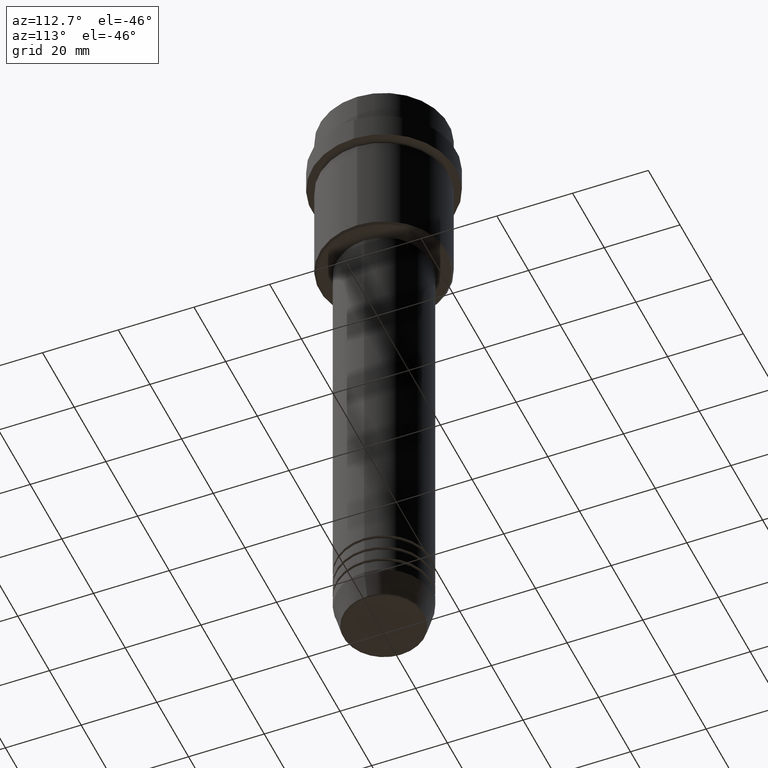
[diagram: clean part render]
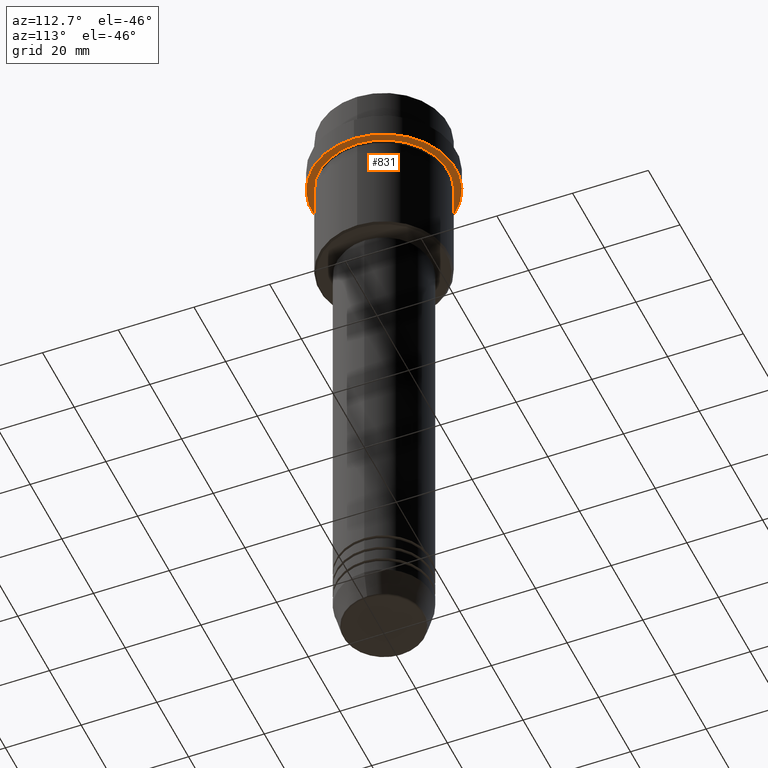
[diagram: same view with one face highlighted and labeled with its STEP entity id]
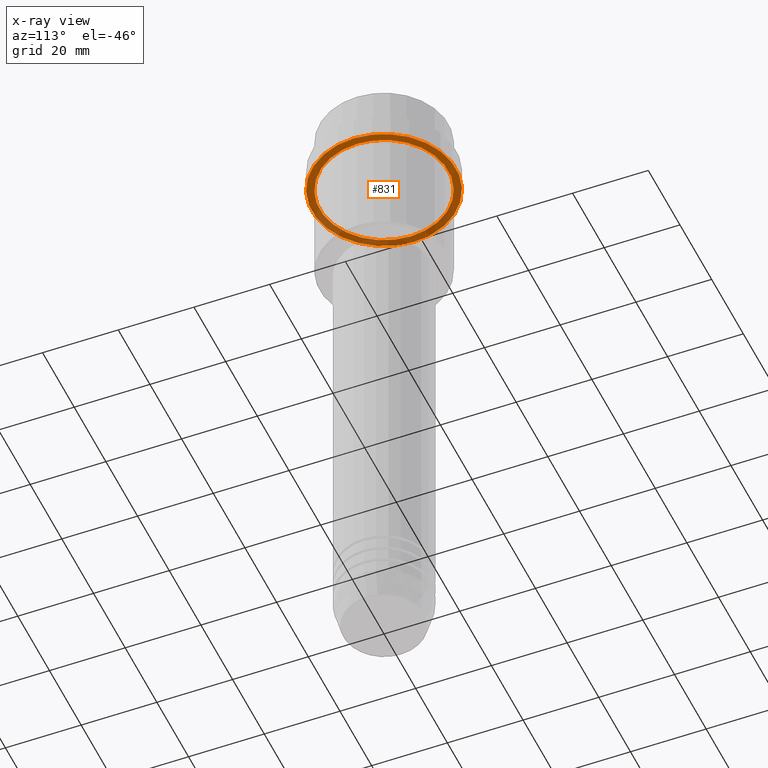
[diagram: x-ray of the same camera — body ghosted, the highlighted face saturated]
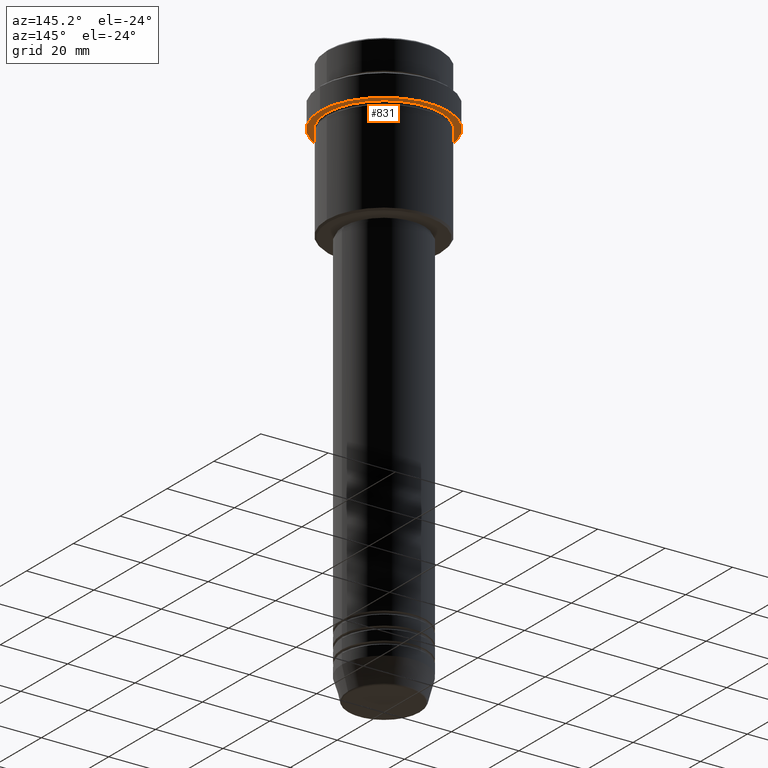
[diagram: same view with one face highlighted and labeled with its STEP entity id]
A machine part, auxiliary view. The second image highlights one B-rep face of the part: STEP entity #831.
The next image is the same camera in x-ray: the body ghosted, the highlighted face saturated — about 36% of this face is hidden behind the body in this view.
A second angle (auxiliary view) of the same face is appended — the face is thin or edge-on in the first view.
In plain terms, the highlighted planar face has unit normal (0, 0, -1).
Its self-contained STEP definition (entity closure, byte-faithful):
#17 = CARTESIAN_POINT ( 'NONE',  ( -16.99999999999997513, 0.000000000000000000, -17.00000000000000000 ) ) ;
#19 = EDGE_CURVE ( 'NONE', #40, #1066, #753, .T. ) ;
#26 = DIRECTION ( 'NONE',  ( -1.000000000000000000, 0.000000000000000000, -0.000000000000000000 ) ) ;
#40 = VERTEX_POINT ( 'NONE', #1054 ) ;
#43 = FACE_BOUND ( 'NONE', #114, .T. ) ;
#88 = AXIS2_PLACEMENT_3D ( 'NONE', #154, #1354, #375 ) ;
#114 = EDGE_LOOP ( 'NONE', ( #288, #647 ) ) ;
#120 = CARTESIAN_POINT ( 'NONE',  ( 0.000000000000000000, 18.99999999999997868, -17.00000000000000000 ) ) ;
#154 = CARTESIAN_POINT ( 'NONE',  ( 0.000000000000000000, 0.000000000000000000, -17.00000000000000000 ) ) ;
#211 = VERTEX_POINT ( 'NONE', #766 ) ;
#288 = ORIENTED_EDGE ( 'NONE', *, *, #1326, .T. ) ;
#324 = EDGE_CURVE ( 'NONE', #211, #1026, #1219, .T. ) ;
#356 = FACE_OUTER_BOUND ( 'NONE', #514, .T. ) ;
#357 = CARTESIAN_POINT ( 'NONE',  ( 0.000000000000000000, 0.000000000000000000, -17.00000000000000000 ) ) ;
#375 = DIRECTION ( 'NONE',  ( -1.000000000000000000, 0.000000000000000000, 0.000000000000000000 ) ) ;
#478 = AXIS2_PLACEMENT_3D ( 'NONE', #120, #561, #26 ) ;
#481 = PLANE ( 'NONE',  #478 ) ;
#514 = EDGE_LOOP ( 'NONE', ( #738, #650 ) ) ;
#561 = DIRECTION ( 'NONE',  ( 0.000000000000000000, 0.000000000000000000, -1.000000000000000000 ) ) ;
#647 = ORIENTED_EDGE ( 'NONE', *, *, #19, .T. ) ;
#650 = ORIENTED_EDGE ( 'NONE', *, *, #1405, .F. ) ;
#706 = CARTESIAN_POINT ( 'NONE',  ( 0.000000000000000000, 0.000000000000000000, -17.00000000000000000 ) ) ;
#732 = CIRCLE ( 'NONE', #88, 16.99999999999997513 ) ;
#738 = ORIENTED_EDGE ( 'NONE', *, *, #324, .F. ) ;
#753 = CIRCLE ( 'NONE', #1275, 16.99999999999997513 ) ;
#766 = CARTESIAN_POINT ( 'NONE',  ( 18.99999999999997868, 0.000000000000000000, -17.00000000000000000 ) ) ;
#820 = CIRCLE ( 'NONE', #1000, 18.99999999999997868 ) ;
#831 = ADVANCED_FACE ( 'NONE', ( #43, #356 ), #481, .T. ) ;
#934 = DIRECTION ( 'NONE',  ( 1.000000000000000000, 0.000000000000000000, 0.000000000000000000 ) ) ;
#973 = AXIS2_PLACEMENT_3D ( 'NONE', #357, #1011, #1241 ) ;
#1000 = AXIS2_PLACEMENT_3D ( 'NONE', #1064, #1040, #934 ) ;
#1002 = DIRECTION ( 'NONE',  ( -1.000000000000000000, 0.000000000000000000, 0.000000000000000000 ) ) ;
#1011 = DIRECTION ( 'NONE',  ( -0.000000000000000000, -0.000000000000000000, 1.000000000000000000 ) ) ;
#1026 = VERTEX_POINT ( 'NONE', #1128 ) ;
#1040 = DIRECTION ( 'NONE',  ( -0.000000000000000000, -0.000000000000000000, 1.000000000000000000 ) ) ;
#1054 = CARTESIAN_POINT ( 'NONE',  ( 16.99999999999997513, 2.081899558550497519E-15, -17.00000000000000000 ) ) ;
#1064 = CARTESIAN_POINT ( 'NONE',  ( 0.000000000000000000, 0.000000000000000000, -17.00000000000000000 ) ) ;
#1066 = VERTEX_POINT ( 'NONE', #17 ) ;
#1128 = CARTESIAN_POINT ( 'NONE',  ( -18.99999999999997868, 2.326828918379968604E-15, -17.00000000000000000 ) ) ;
#1219 = CIRCLE ( 'NONE', #973, 18.99999999999997868 ) ;
#1241 = DIRECTION ( 'NONE',  ( 1.000000000000000000, 0.000000000000000000, 0.000000000000000000 ) ) ;
#1275 = AXIS2_PLACEMENT_3D ( 'NONE', #706, #1336, #1002 ) ;
#1326 = EDGE_CURVE ( 'NONE', #1066, #40, #732, .T. ) ;
#1336 = DIRECTION ( 'NONE',  ( -0.000000000000000000, -0.000000000000000000, 1.000000000000000000 ) ) ;
#1354 = DIRECTION ( 'NONE',  ( -0.000000000000000000, -0.000000000000000000, 1.000000000000000000 ) ) ;
#1405 = EDGE_CURVE ( 'NONE', #1026, #211, #820, .T. ) ;